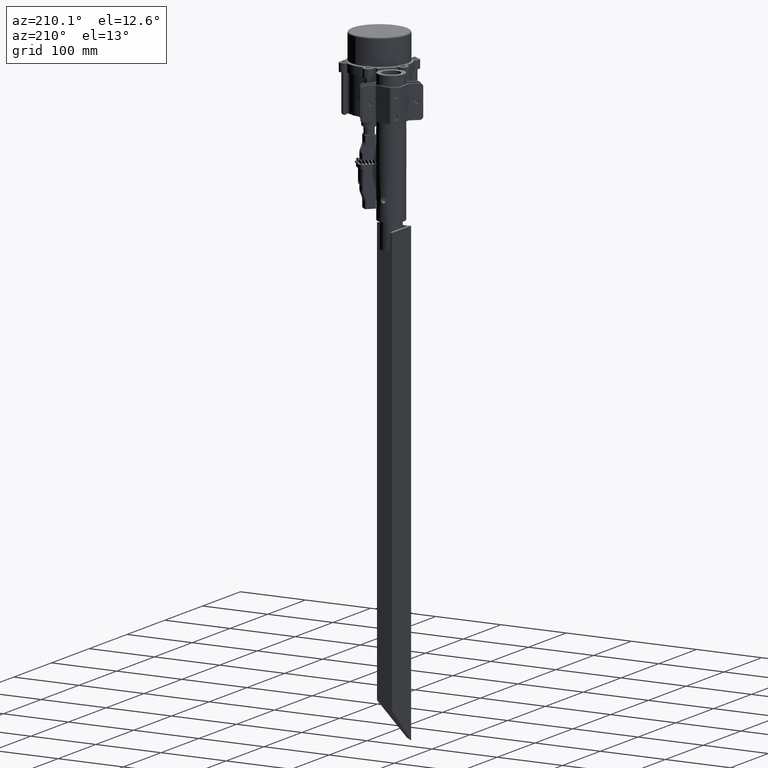
[diagram: clean part render]
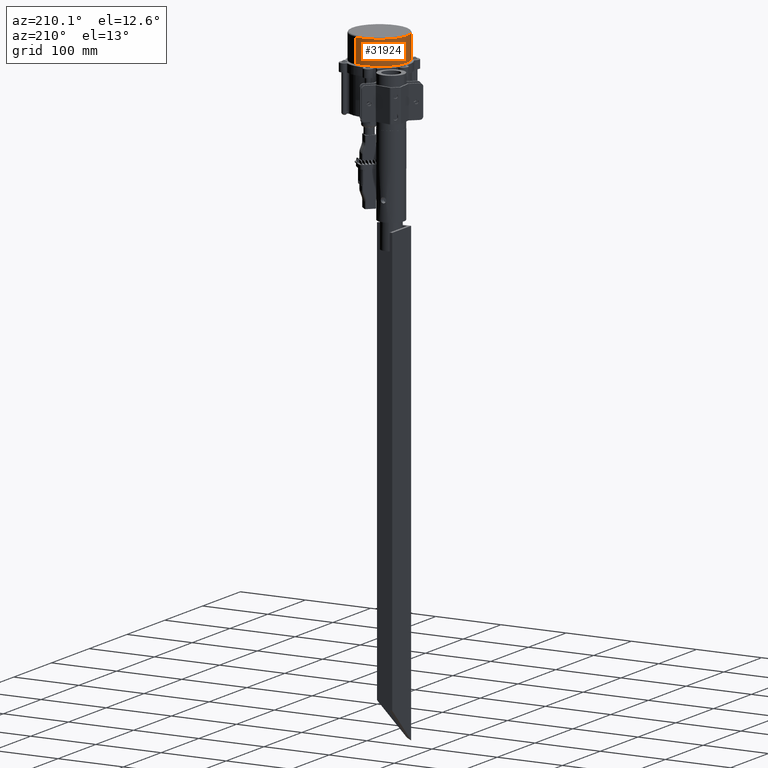
[diagram: same view with one face highlighted and labeled with its STEP entity id]
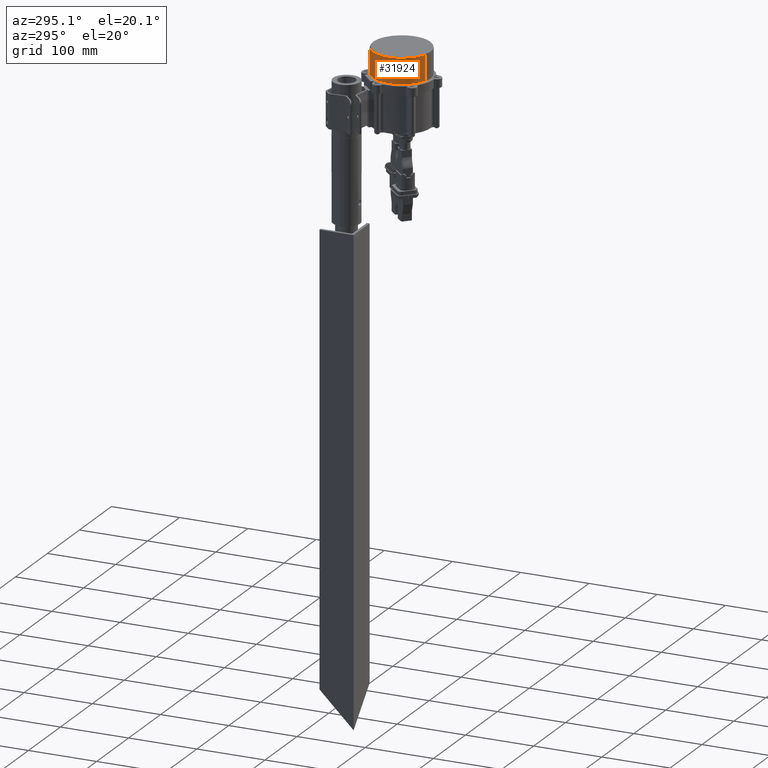
[diagram: same view with one face highlighted and labeled with its STEP entity id]
A machine part, auxiliary view. The second image highlights one B-rep face of the part: STEP entity #31924.
A second angle (auxiliary view) of the same face is appended — the face is thin or edge-on in the first view.
In plain terms, the highlighted cylindrical surface (edge-blend (fillet) strip) has radius 42.5 mm, axis along (-0, 0, -1).
Its self-contained STEP definition (entity closure, byte-faithful):
#2109 = CARTESIAN_POINT ( 'NONE',  ( -3.046066003598024700E-013, -1.210511725580065700E-012, -40.00000000000000000 ) ) ;
#3108 = ORIENTED_EDGE ( 'NONE', *, *, #7456, .F. ) ;
#3944 = EDGE_CURVE ( 'NONE', #15680, #21207, #28089, .T. ) ;
#4930 = DIRECTION ( 'NONE',  ( -0.0000000000000000000, -0.0000000000000000000, 1.000000000000000000 ) ) ;
#6756 = ORIENTED_EDGE ( 'NONE', *, *, #25026, .T. ) ;
#6780 = AXIS2_PLACEMENT_3D ( 'NONE', #2109, #28331, #22572 ) ;
#7456 = EDGE_CURVE ( 'NONE', #15680, #11349, #27792, .T. ) ;
#8201 = CIRCLE ( 'NONE', #10193, 42.50000000000000700 ) ;
#10193 = AXIS2_PLACEMENT_3D ( 'NONE', #16978, #37460, #19905 ) ;
#10195 = DIRECTION ( 'NONE',  ( -0.0000000000000000000, -0.0000000000000000000, 1.000000000000000000 ) ) ;
#11349 = VERTEX_POINT ( 'NONE', #28104 ) ;
#11424 = FACE_OUTER_BOUND ( 'NONE', #34927, .T. ) ;
#12413 = DIRECTION ( 'NONE',  ( -0.0000000000000000000, -0.0000000000000000000, 1.000000000000000000 ) ) ;
#12911 = CARTESIAN_POINT ( 'NONE',  ( 42.49999999999970200, -1.210511725580065700E-012, -41.00000000000000000 ) ) ;
#14027 = VECTOR ( 'NONE', #10195, 1000.000000000000000 ) ;
#15620 = ORIENTED_EDGE ( 'NONE', *, *, #3944, .T. ) ;
#15680 = VERTEX_POINT ( 'NONE', #12911 ) ;
#16978 = CARTESIAN_POINT ( 'NONE',  ( -3.046066003598024700E-013, -1.210511725580065700E-012, -3.999999999999996400 ) ) ;
#18267 = CYLINDRICAL_SURFACE ( 'NONE', #6780, 42.50000000000000700 ) ;
#18460 = VERTEX_POINT ( 'NONE', #28395 ) ;
#19905 = DIRECTION ( 'NONE',  ( 1.000000000000000000, 0.0000000000000000000, 0.0000000000000000000 ) ) ;
#20101 = ORIENTED_EDGE ( 'NONE', *, *, #27465, .T. ) ;
#21207 = VERTEX_POINT ( 'NONE', #30794 ) ;
#21808 = LINE ( 'NONE', #30533, #14027 ) ;
#22572 = DIRECTION ( 'NONE',  ( 1.000000000000000000, 0.0000000000000000000, 0.0000000000000000000 ) ) ;
#25025 = VECTOR ( 'NONE', #4930, 1000.000000000000000 ) ;
#25026 = EDGE_CURVE ( 'NONE', #18460, #11349, #8201, .T. ) ;
#26042 = AXIS2_PLACEMENT_3D ( 'NONE', #29971, #12413, #32887 ) ;
#27465 = EDGE_CURVE ( 'NONE', #21207, #18460, #21808, .T. ) ;
#27792 = LINE ( 'NONE', #37072, #25025 ) ;
#28089 = CIRCLE ( 'NONE', #26042, 42.50000000000000700 ) ;
#28104 = CARTESIAN_POINT ( 'NONE',  ( 42.49999999999970200, -1.210511725580065700E-012, -3.999999999999996400 ) ) ;
#28331 = DIRECTION ( 'NONE',  ( -0.0000000000000000000, -0.0000000000000000000, 1.000000000000000000 ) ) ;
#28395 = CARTESIAN_POINT ( 'NONE',  ( -42.50000000000031300, -1.205306976683689500E-012, -3.999999999999996400 ) ) ;
#29971 = CARTESIAN_POINT ( 'NONE',  ( -3.046066003598024700E-013, -1.210511725580065700E-012, -41.00000000000000000 ) ) ;
#30533 = CARTESIAN_POINT ( 'NONE',  ( -42.50000000000031300, -1.205306976683689500E-012, -40.00000000000000000 ) ) ;
#30794 = CARTESIAN_POINT ( 'NONE',  ( -42.50000000000031300, -1.205306976683689500E-012, -41.00000000000000000 ) ) ;
#31924 = ADVANCED_FACE ( 'NONE', ( #11424 ), #18267, .T. ) ;
#32887 = DIRECTION ( 'NONE',  ( -1.000000000000000000, 0.0000000000000000000, 0.0000000000000000000 ) ) ;
#34927 = EDGE_LOOP ( 'NONE', ( #15620, #20101, #6756, #3108 ) ) ;
#37072 = CARTESIAN_POINT ( 'NONE',  ( 42.49999999999970200, -1.210511725580065700E-012, -40.00000000000000000 ) ) ;
#37460 = DIRECTION ( 'NONE',  ( -0.0000000000000000000, -0.0000000000000000000, -1.000000000000000000 ) ) ;